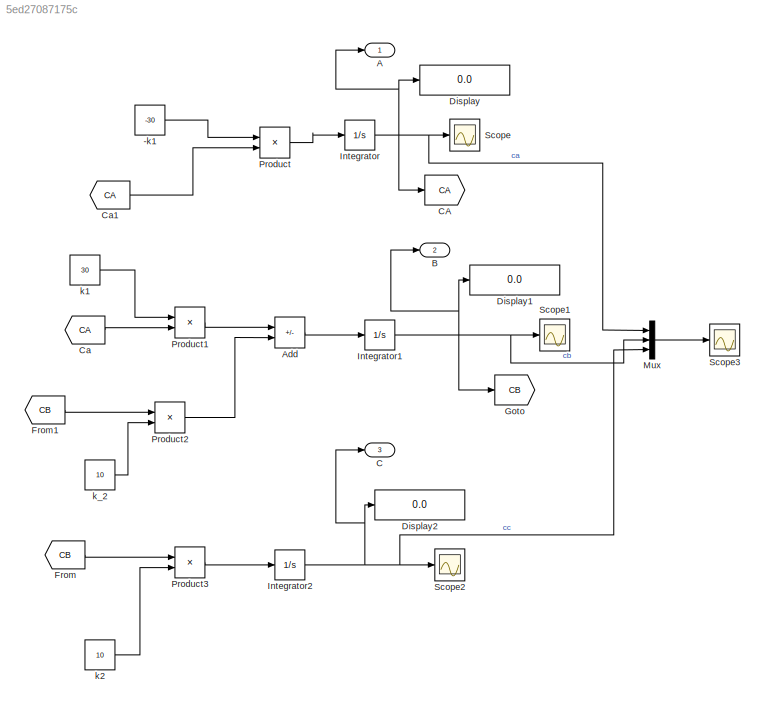
MODEL slx_5ed27087175c
KIND model
CONFIG AbsTol = auto
CONFIG EnableMultiTasking = off
CONFIG FixedStep = auto
CONFIG MaxStep = auto
CONFIG MinStep = auto
CONFIG RelTol = 1e-3
CONFIG SampleTimeConstraint = Unconstrained
CONFIG SolverName = VariableStepAuto
CONFIG StartTime = 0.0
CONFIG StopTime = 1.7
BLOCK [Constant] -k1
  Value = -30
BLOCK [Outport] A
BLOCK [Sum] Add
  IconShape = rectangular
  Inputs = +-
  Ports = [2, 1]
BLOCK [Outport] B
  Port = 2
BLOCK [Outport] C
  Port = 3
BLOCK [Goto] CA
  GotoTag = CA
BLOCK [From] Ca
  GotoTag = CA
BLOCK [From] Ca1
  GotoTag = CA
BLOCK [Display] Display
  Decimation = 1
  Ports = [1]
BLOCK [Display] Display1
  Decimation = 1
  Ports = [1]
BLOCK [Display] Display2
  Decimation = 1
  Ports = [1]
BLOCK [From] From
  GotoTag = CB
BLOCK [From] From1
  GotoTag = CB
BLOCK [Goto] Goto
  GotoTag = CB
BLOCK [Integrator] Integrator
  InitialCondition = 100
  Ports = [1, 1]
BLOCK [Integrator] Integrator1
  Ports = [1, 1]
BLOCK [Integrator] Integrator2
  Ports = [1, 1]
BLOCK [Mux] Mux
  DisplayOption = bar
  Inputs = 3
  Ports = [3, 1]
BLOCK [Product] Product
  Ports = [2, 1]
BLOCK [Product] Product1
  Ports = [2, 1]
BLOCK [Product] Product2
  Ports = [2, 1]
BLOCK [Product] Product3
  Ports = [2, 1]
BLOCK [Scope] Scope
  Floating = off
  NumInputPorts = 1
  Ports = [1]
  ScopeSpecificationString = Simulink.scopes.TimeScopeBlockCfg('CurrentConfiguration', extmgr.ConfigurationSet(extmgr.Configuration('Core','General UI',true),extmgr.Configuration('Core','Source UI',true),extmgr.Configuration('Sources','WiredSimulink',true),extmgr.Configuration('Visuals','Time Domain',true,'SerializedDisplays',{struct('MinYLimReal','-12.49638','MaxYLimReal','112.4996','YLabelReal','','MinYLimMag','0.00000','Ma...<+1336ch>
BLOCK [Scope] Scope1
  Floating = off
  NumInputPorts = 1
  Ports = [1]
  ScopeSpecificationString = Simulink.scopes.TimeScopeBlockCfg('CurrentConfiguration', extmgr.ConfigurationSet(extmgr.Configuration('Core','General UI',true),extmgr.Configuration('Core','Source UI',true),extmgr.Configuration('Sources','WiredSimulink',true,'DataLoggingVariableName','ScopeData1'),extmgr.Configuration('Visuals','Time Domain',true,'SerializedDisplays',{struct('MinYLimReal','-7.21108','MaxYLimReal','64.89969','YLa...<+1374ch>
BLOCK [Scope] Scope2
  Floating = off
  NumInputPorts = 1
  Ports = [1]
  ScopeSpecificationString = Simulink.scopes.TimeScopeBlockCfg('CurrentConfiguration', extmgr.ConfigurationSet(extmgr.Configuration('Core','General UI',true),extmgr.Configuration('Core','Source UI',true),extmgr.Configuration('Sources','WiredSimulink',true,'DataLoggingVariableName','ScopeData2'),extmgr.Configuration('Visuals','Time Domain',true,'SerializedDisplays',{struct('MinYLimReal','-12.50235','MaxYLimReal','112.52119','Y...<+1380ch>
BLOCK [Scope] Scope3
  Floating = off
  NumInputPorts = 1
  Ports = [1]
  ScopeSpecificationString = Simulink.scopes.TimeScopeBlockCfg('CurrentConfiguration', extmgr.ConfigurationSet(extmgr.Configuration('Core','General UI',true),extmgr.Configuration('Core','Source UI',true),extmgr.Configuration('Sources','WiredSimulink',true,'DataLoggingVariableName','ScopeData3'),extmgr.Configuration('Visuals','Time Domain',true,'SerializedDisplays',{struct('MinYLimReal','-10','MaxYLimReal','110','YLabelReal','...<+1401ch>
BLOCK [Constant] k1
  Value = 30
BLOCK [Constant] k2
  Value = 10
BLOCK [Constant] k_2
  Value = 10
LINE -k1:1 -> Product:1
LINE Add:1 -> Integrator1:1
LINE Ca1:1 -> Product:2
LINE Ca:1 -> Product1:2
LINE From1:1 -> Product2:1
LINE From:1 -> Product3:1
NET Integrator1:1 -> B:1, Display1:1, Goto:1, Mux:2, Scope1:1
NET Integrator2:1 -> C:1, Display2:1, Mux:3, Scope2:1
NET Integrator:1 -> A:1, CA:1, Display:1, Mux:1, Scope:1
LINE Mux:1 -> Scope3:1
LINE Product1:1 -> Add:1
LINE Product2:1 -> Add:2
LINE Product3:1 -> Integrator2:1
LINE Product:1 -> Integrator:1
LINE k1:1 -> Product1:1
LINE k2:1 -> Product3:2
LINE k_2:1 -> Product2:2
note: NET lines group one-source signal fan-out (src -> all destinations, sorted); 1:1 wires keep LINE
